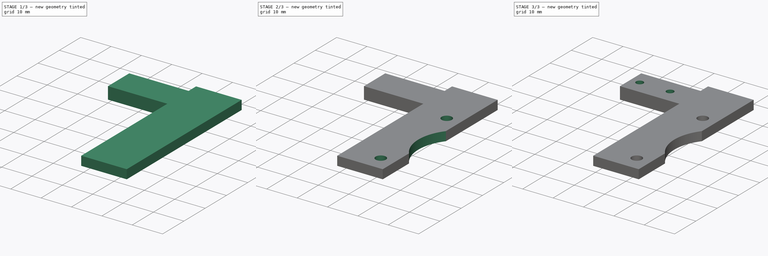
[diagram: build sequence overview — one tinted view per stage of 3, left to right]
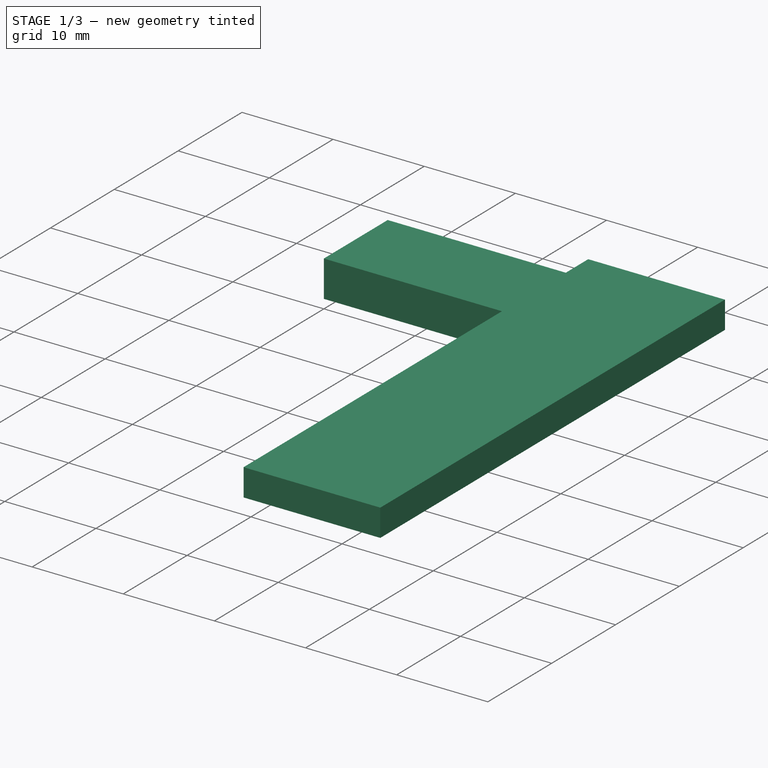
[diagram: stage 1 of 3 — iso view after this stage's code; geometry added in this stage tinted green]
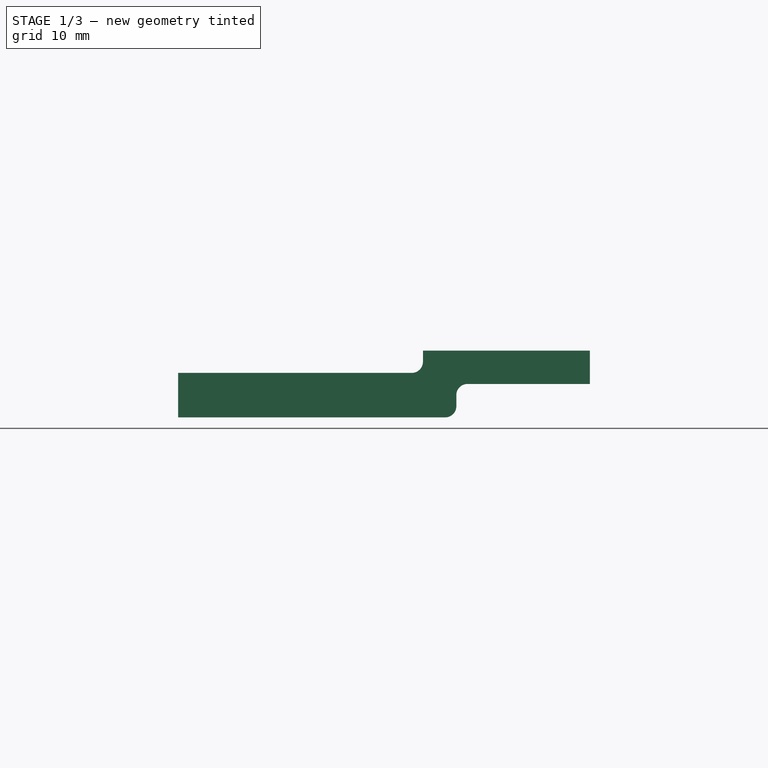
[diagram: stage 1 of 3 — front view after this stage's code; geometry added in this stage tinted green]
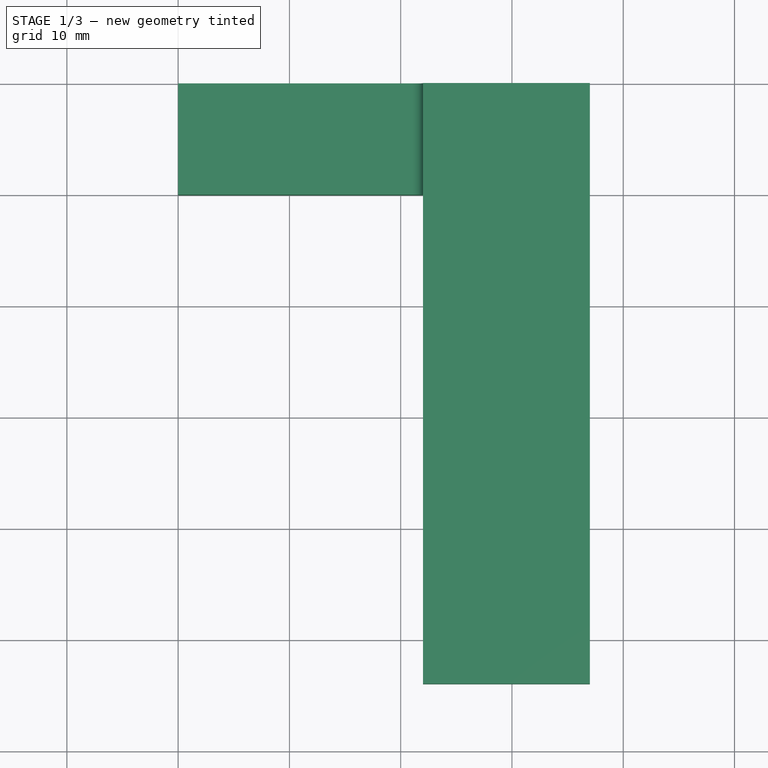
[diagram: stage 1 of 3 — top view after this stage's code; geometry added in this stage tinted green]
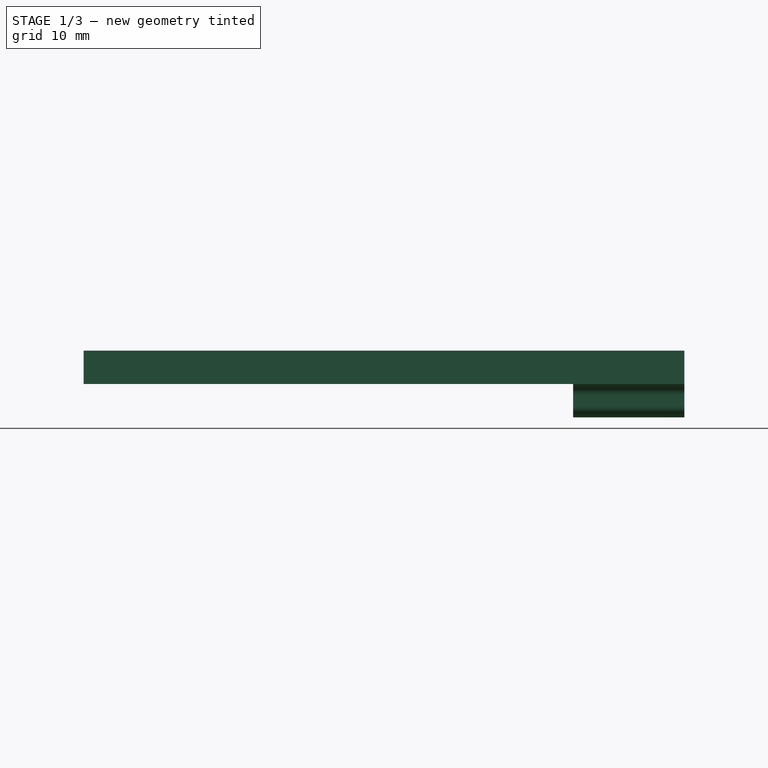
[diagram: stage 1 of 3 — right view after this stage's code; geometry added in this stage tinted green]
FCSTD DOCUMENT  (FreeCAD 0.19R24276 (Git))
Label: Art1OptoFix
License: All rights reserved
LicenseURL: http://en.wikipedia.org/wiki/All_rights_reserved
objects: Sketcher::SketchObject×5, PartDesign::Line×4, PartDesign::Pocket×3, PartDesign::Pad×2, PartDesign::CoordinateSystem×2, Spreadsheet::Sheet×1, PartDesign::Body×1
note: 22 computed .brp shape members not serialized (recipe doc carries the construction recipe); baked Part::Feature solids carry a one-line shape summary decoded from their .brp

FEATURE [Sketcher::SketchObject] Sketch
  FullyConstrained = true
  MapMode = 5
  Placement = pos=(0,0,0) rot=(1,0,0;1.5708rad)
  Support = -> [XZ_Plane]
  sketch-geometry (11):
    g0: LineSegment StartX=0 StartY=0 StartZ=0 EndX=24 EndY=0 EndZ=0
    g1: LineSegment StartX=25 StartY=1 StartZ=0 EndX=25 EndY=2 EndZ=0
    g2: LineSegment StartX=26 StartY=3 StartZ=0 EndX=37 EndY=3 EndZ=0
    g3: LineSegment StartX=37 StartY=3 StartZ=0 EndX=37 EndY=6 EndZ=0
    g4: LineSegment StartX=37 StartY=6 StartZ=0 EndX=22 EndY=6 EndZ=0
    g5: LineSegment StartX=22 StartY=6 StartZ=0 EndX=22 EndY=5 EndZ=0
    g6: LineSegment StartX=21 StartY=4 StartZ=0 EndX=0 EndY=4 EndZ=0
    g7: LineSegment StartX=0 StartY=4 StartZ=0 EndX=0 EndY=0 EndZ=0
    g8: ArcOfCircle CenterX=24 CenterY=1 CenterZ=0 NormalX=0 NormalY=0 NormalZ=1 AngleXU=0 Radius=1 StartAngle=4.71239 EndAngle=6.28319
    g9: ArcOfCircle CenterX=26 CenterY=2 CenterZ=0 NormalX=0 NormalY=0 NormalZ=1 AngleXU=0 Radius=1 StartAngle=1.5708 EndAngle=3.14159
    g10: ArcOfCircle CenterX=21 CenterY=5 CenterZ=0 NormalX=0 NormalY=0 NormalZ=1 AngleXU=0 Radius=1 StartAngle=4.71239 EndAngle=6.28319
  constraints (29):
    c: Coincident(g-1,g0)
    c: Horizontal(g2)
    c: Coincident(g2,g3)
    c: Coincident(g3,g4)
    c: Horizontal(g4)
    c: Coincident(g4,g5)
    c: Vertical(g5)
    c: PointOnObject(g6,g-2)
    c: Horizontal(g6)
    c: Coincident(g6,g7)
    c: Coincident(g7,g0)
    c: Vertical(g1)
    c: Vertical(g3)
    c: DistanceX(g4,g4) = 15
    c: Tangent(g1,g8) = -1.5708
    c: Tangent(g0,g8) = -1.5708
    c: Tangent(g1,g9) = 1.5708
    c: Tangent(g2,g9) = 1.5708
    c: Tangent(g6,g10) = 1.5708
    c: Tangent(g5,g10) = 1.5708
    c: Equal(g8,g9)
    c: Equal(g9,g10)
    c: Radius(g9) = 1
    c: Horizontal(g0)
    c: DistanceX(g0,g0) = 24
    c: DistanceX(g2,g2) = 11
    c: DistanceY(g5,g5) = 1
    c: DistanceY(g3,g3) = 3
    c: DistanceY(g7,g7) = 4
FEATURE [PartDesign::Pad] Pad
  Direction = (1,1,1)
  Length = 10
  Length2 = 100
  Placement = pos=(0,0,0) rot=(1,0,0;1.5708rad)
  Profile = -> Sketch
  Refine = true
  Type = 0
FEATURE [Sketcher::SketchObject] Sketch001
  ExternalGeometry = -> [Pad]
  FullyConstrained = true
  MapMode = 5
  Placement = pos=(0,-10,4.4e-15) rot=(1,0,0;1.5708rad)
  Support = -> [Pad]
  sketch-geometry (4):
    g0: LineSegment StartX=37 StartY=6 StartZ=0 EndX=22 EndY=6 EndZ=0
    g1: LineSegment StartX=22 StartY=6 StartZ=0 EndX=22 EndY=3 EndZ=0
    g2: LineSegment StartX=22 StartY=3 StartZ=0 EndX=37 EndY=3 EndZ=0
    g3: LineSegment StartX=37 StartY=3 StartZ=0 EndX=37 EndY=6 EndZ=0
  constraints (9):
    c: Coincident(g0,g1)
    c: Coincident(g1,g2)
    c: Coincident(g2,g3)
    c: Coincident(g3,g0)
    c: Horizontal(g2)
    c: Vertical(g1)
    c: Coincident(g0,g-4)
    c: Coincident(g2,g-4)
    c: Coincident(g0,g-3)
FEATURE [PartDesign::Pad] Pad001
  BaseFeature = -> Pad
  Direction = (1,1,1)
  Length = 44
  Length2 = 100
  Placement = pos=(0,0,0) rot=(1,0,0;1.5708rad)
  Profile = -> Sketch001
  Refine = true
  Type = 0
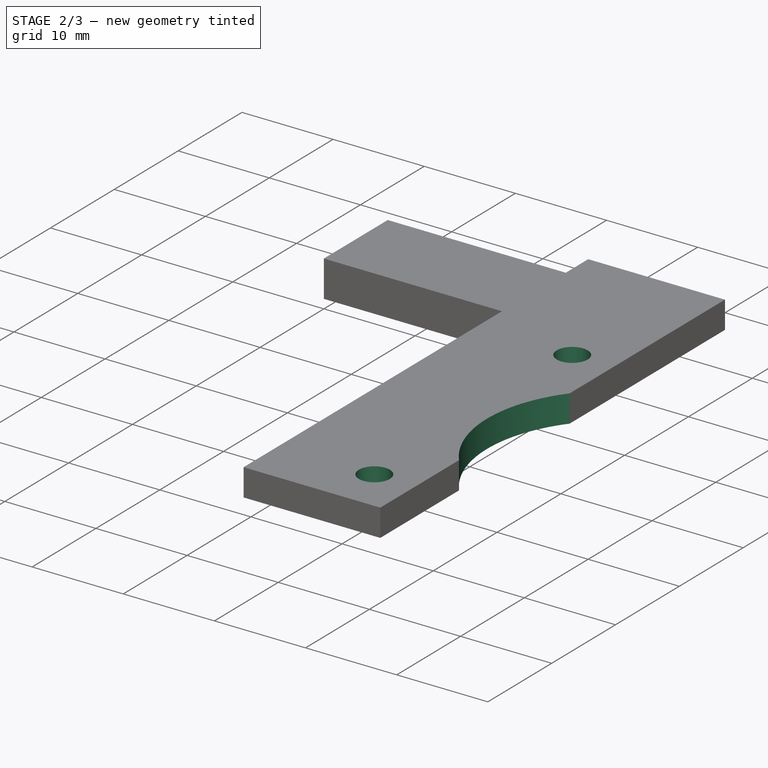
[diagram: stage 2 of 3 — iso view after this stage's code; geometry added in this stage tinted green]
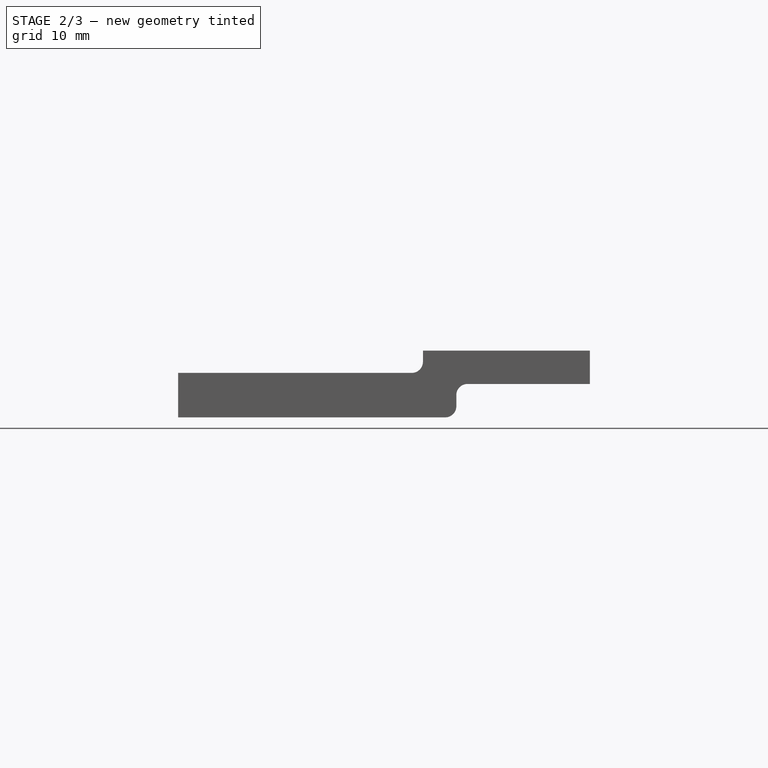
[diagram: stage 2 of 3 — front view after this stage's code; geometry added in this stage tinted green]
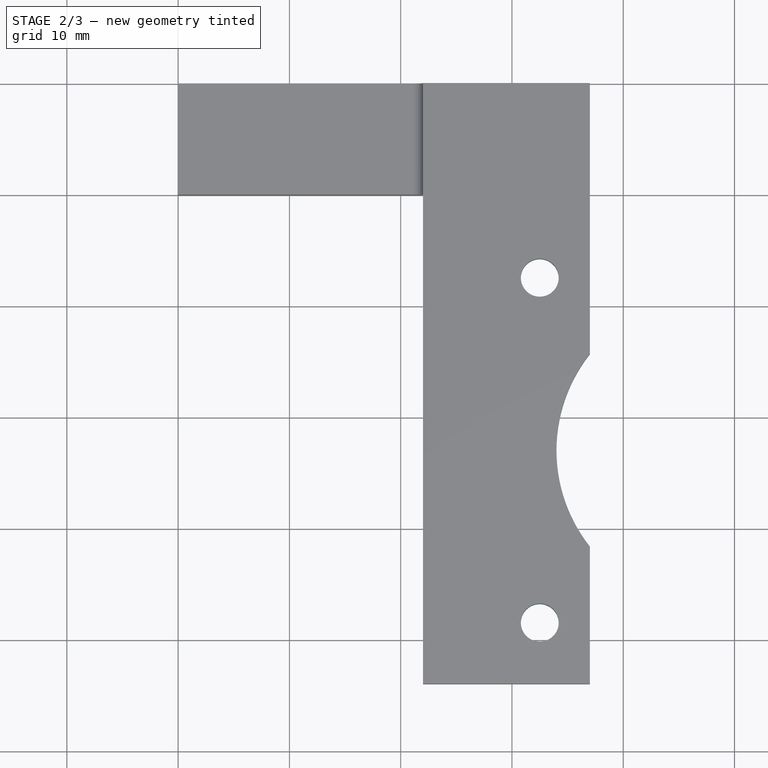
[diagram: stage 2 of 3 — top view after this stage's code; geometry added in this stage tinted green]
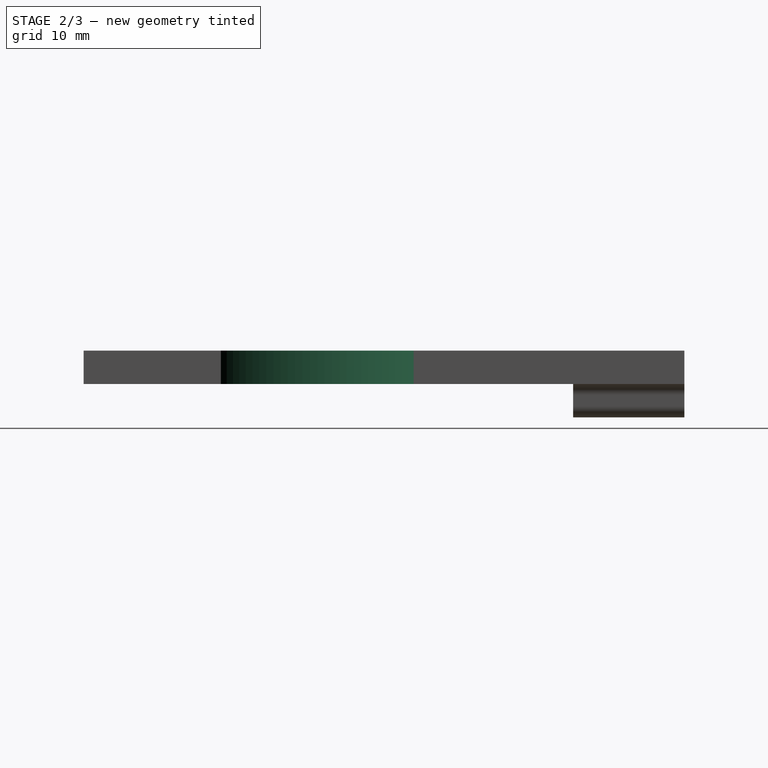
[diagram: stage 2 of 3 — right view after this stage's code; geometry added in this stage tinted green]
FEATURE [Spreadsheet::Sheet] Spreadsheet
  cells = A2=M3BoltBodyRadius; B2(M3BoltBodyRadius)=1.7; A3=M2BoltBodyRadius; B3(M2BoltBodyRadius)=1.2; A4=M2NutCircumradius; B4(M2NutCircumradius)=2.25
FEATURE [Sketcher::SketchObject] Sketch002
  ExternalGeometry = -> [Pad001]
  FullyConstrained = true
  MapMode = 5
  Placement = pos=(0,7e-15,6) rot=(0,0,1;3.14159rad)
  Support = -> [Pad001]
  expr: Constraints[8] = Spreadsheet.M3BoltBodyRadius
  sketch-geometry (3):
    g0: Circle CenterX=-48 CenterY=33 CenterZ=0 NormalX=0 NormalY=0 NormalZ=1 AngleXU=0 Radius=14
    g1: Circle CenterX=-32.5 CenterY=48.5 CenterZ=0 NormalX=0 NormalY=0 NormalZ=1 AngleXU=0 Radius=1.7
    g2: Circle CenterX=-32.5 CenterY=17.5 CenterZ=0 NormalX=0 NormalY=0 NormalZ=1 AngleXU=0 Radius=1.7
  constraints (9):
    c: DistanceY(g-3,g0) = 33
    c: Radius(g0) = 14
    c: DistanceX(g0,g-3) = 11
    c: Equal(g2,g1)
    c: DistanceY(g0,g1) = 15.5
    c: DistanceX(g0,g1) = 15.5
    c: DistanceX(g0,g2) = 15.5
    c: DistanceY(g2,g0) = 15.5
    c: Radius(g2) = 1.7
FEATURE [PartDesign::Pocket] Pocket
  BaseFeature = -> Pad001
  Length = 5
  Length2 = 100
  Placement = pos=(0,0,0) rot=(1,0,0;1.5708rad)
  Profile = -> Sketch002
  Refine = true
  Type = 1
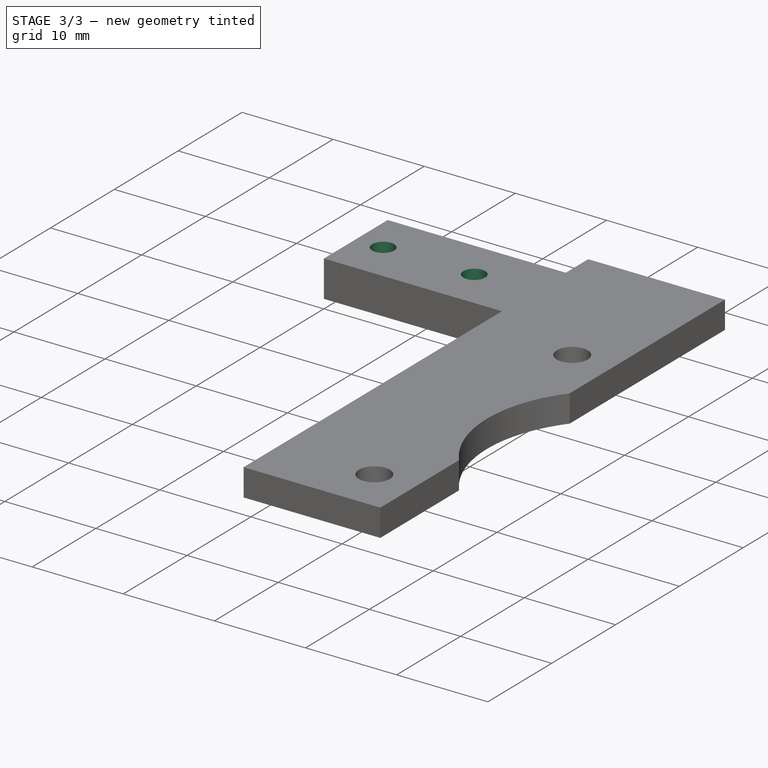
[diagram: stage 3 of 3 — iso view after this stage's code; geometry added in this stage tinted green]
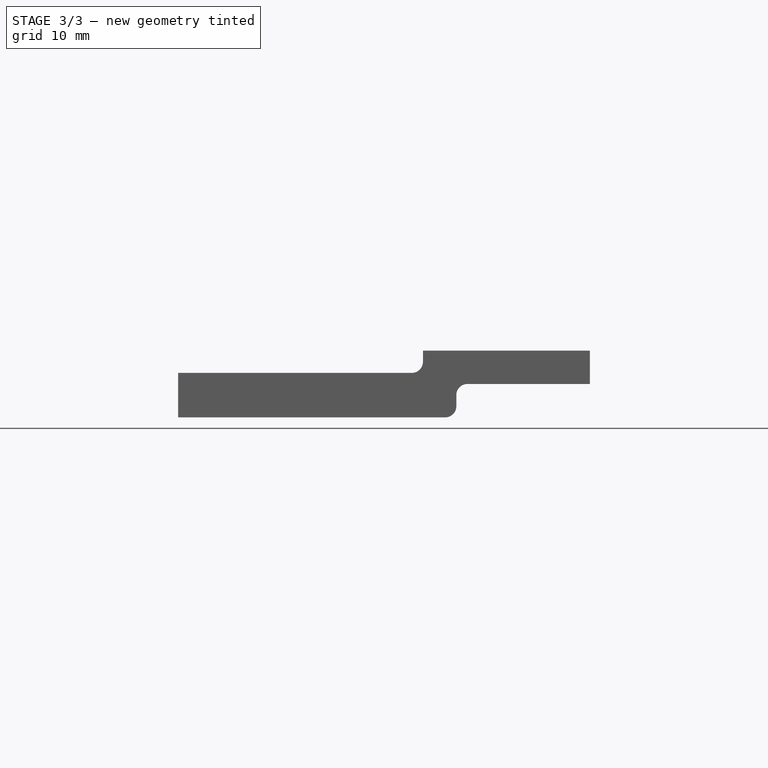
[diagram: stage 3 of 3 — front view after this stage's code; geometry added in this stage tinted green]
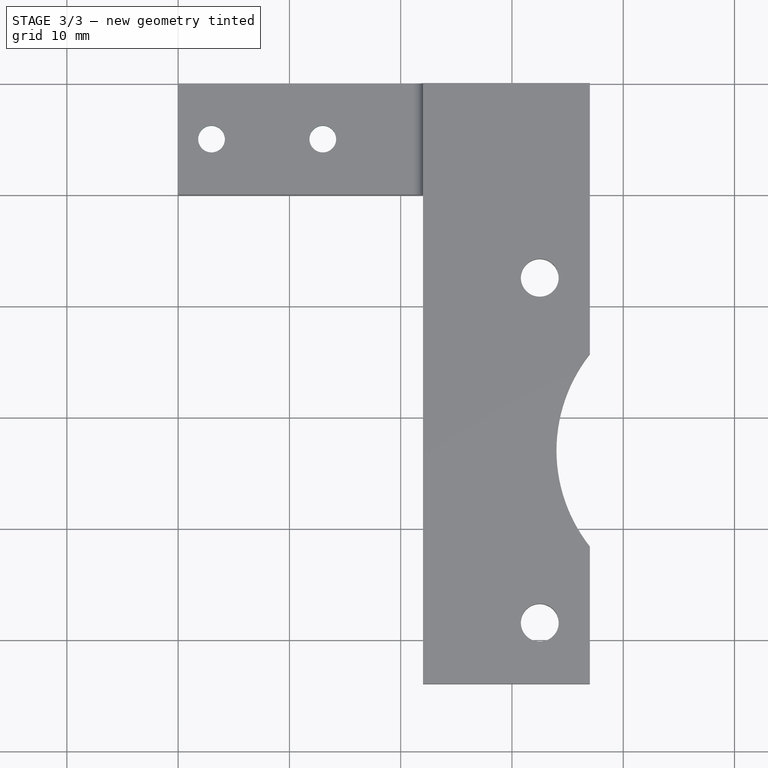
[diagram: stage 3 of 3 — top view after this stage's code; geometry added in this stage tinted green]
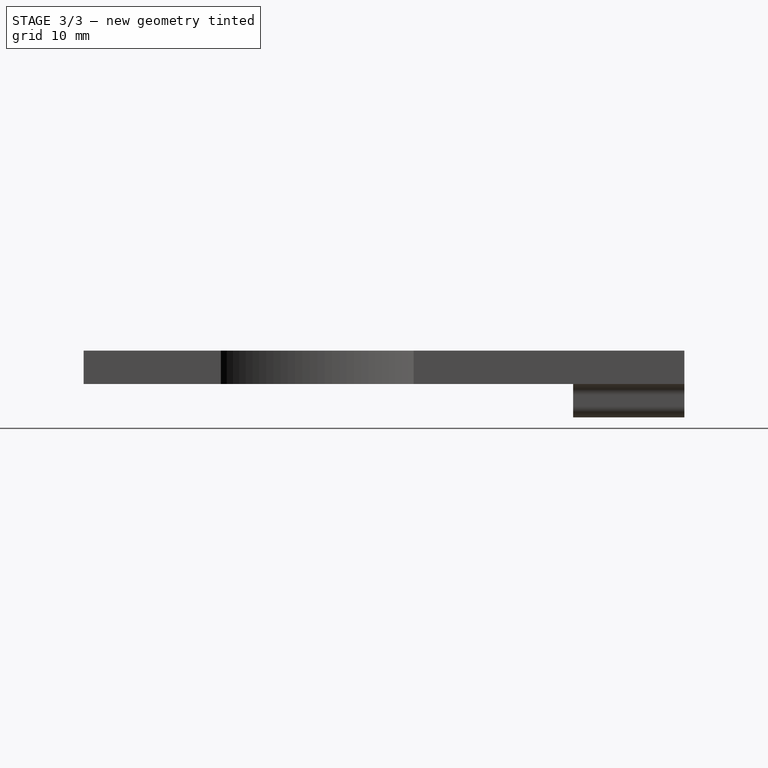
[diagram: stage 3 of 3 — right view after this stage's code; geometry added in this stage tinted green]
FEATURE [Sketcher::SketchObject] Sketch003
  FullyConstrained = true
  MapMode = 5
  Placement = pos=(0,2.6e-15,4) rot=(0,0,1;3.14159rad)
  Support = -> [Pocket]
  expr: Constraints[7] = Spreadsheet.M2BoltBodyRadius
  sketch-geometry (3):
    g0: Circle CenterX=-3 CenterY=5 CenterZ=0 NormalX=0 NormalY=0 NormalZ=1 AngleXU=0 Radius=1.2
    g1: Circle CenterX=-13 CenterY=5 CenterZ=0 NormalX=0 NormalY=0 NormalZ=1 AngleXU=0 Radius=1.2
    g2: LineSegment StartX=-13 StartY=5 StartZ=0 EndX=-3 EndY=5 EndZ=0
  constraints (8):
    c: Equal(g1,g0)
    c: Coincident(g2,g1)
    c: Coincident(g2,g0)
    c: Horizontal(g2)
    c: DistanceY(g-1,g0) = 5
    c: DistanceX(g0,g-1) = 3
    c: DistanceX(g2,g2) = 10
    c: Radius(g1) = 1.2
FEATURE [PartDesign::Pocket] Pocket001
  BaseFeature = -> Pocket
  Length = 5
  Length2 = 100
  Placement = pos=(0,0,0) rot=(1,0,0;1.5708rad)
  Profile = -> Sketch003
  Refine = true
  Type = 0
FEATURE [Sketcher::SketchObject] Sketch004
  ExternalGeometry = -> [Pocket001]
  FullyConstrained = true
  MapMode = 5
  Placement = pos=(0,0,0) rot=(1,0,0;3.14159rad)
  Support = -> [Pocket001]
  expr: Constraints[39] = Spreadsheet.M2NutCircumradius
  sketch-geometry (14):
    g0: LineSegment StartX=4.94856 StartY=3.875 StartZ=0 EndX=4.94856 EndY=6.125 EndZ=0
    g1: LineSegment StartX=4.94856 StartY=6.125 StartZ=0 EndX=3 EndY=7.25 EndZ=0
    g2: LineSegment StartX=3 StartY=7.25 StartZ=0 EndX=1.05144 EndY=6.125 EndZ=0
    g3: LineSegment StartX=1.05144 StartY=6.125 StartZ=0 EndX=1.05144 EndY=3.875 EndZ=0
    g4: LineSegment StartX=1.05144 StartY=3.875 StartZ=0 EndX=3 EndY=2.75 EndZ=0
    g5: LineSegment StartX=3 StartY=2.75 StartZ=0 EndX=4.94856 EndY=3.875 EndZ=0
    g6: Circle CenterX=3 CenterY=5 CenterZ=0 NormalX=0 NormalY=0 NormalZ=1 AngleXU=0 Radius=2.25
    g7: LineSegment StartX=13 StartY=2.75 StartZ=0 EndX=14.9486 EndY=3.875 EndZ=0
    g8: LineSegment StartX=14.9486 StartY=3.875 StartZ=0 EndX=14.9486 EndY=6.125 EndZ=0
    g9: LineSegment StartX=14.9486 StartY=6.125 StartZ=0 EndX=13 EndY=7.25 EndZ=0
    g10: LineSegment StartX=13 StartY=7.25 StartZ=0 EndX=11.0514 EndY=6.125 EndZ=0
    g11: LineSegment StartX=11.0514 StartY=6.125 StartZ=0 EndX=11.0514 EndY=3.875 EndZ=0
    g12: LineSegment StartX=11.0514 StartY=3.875 StartZ=0 EndX=13 EndY=2.75 EndZ=0
    g13: Circle CenterX=13 CenterY=5 CenterZ=0 NormalX=0 NormalY=0 NormalZ=1 AngleXU=0 Radius=2.25
  constraints (32):
    c: Coincident(g0,g1)
    c: Coincident(g1,g2)
    c: Coincident(g2,g3)
    c: Coincident(g3,g4)
    c: Coincident(g4,g5)
    c: Coincident(g5,g0)
    c: Equal(g0, g1-g5) x5
    c: PointOnObject(g0,g6)
    c: PointOnObject(g1,g6)
    c: PointOnObject(g2,g6)
    c: PointOnObject(g3,g6)
    c: PointOnObject(g4,g6)
    c: PointOnObject(g5,g6)
    c: Coincident(g6,g-4)
    c: Coincident(g7,g8)
    c: Coincident(g8,g9)
    c: Coincident(g9,g10)
    c: Coincident(g10,g11)
    c: Coincident(g11,g12)
    c: Coincident(g12,g7)
    c: Equal(g7, g8-g12) x5
    c: PointOnObject(g7,g13)
    c: PointOnObject(g8,g13)
    c: PointOnObject(g9,g13)
    c: PointOnObject(g10,g13)
    c: PointOnObject(g11,g13)
    c: PointOnObject(g12,g13)
    c: Coincident(g13,g-3)
    c: Vertical(g11)
    c: Vertical(g3)
    c: Equal(g6,g13)
    c: Radius(g6) = 2.25
FEATURE [PartDesign::Pocket] Pocket002
  BaseFeature = -> Pocket001
  Length = 2.5
  Length2 = 100
  Placement = pos=(0,0,0) rot=(1,0,0;1.5708rad)
  Profile = -> Sketch004
  Refine = true
  Type = 0
FEATURE [PartDesign::CoordinateSystem] LCS_Art1OptoFix
  AttacherType = Attacher::AttachEngine3D
  MapMode = 45
  Placement = pos=(32.5,-33,3) rot=(0,0,1;0rad)
  Support = -> [Pocket002]
FEATURE [PartDesign::CoordinateSystem] LCS_Art1OptoSensor
  AttacherType = Attacher::AttachEngine3D
  MapMode = 45
  Placement = pos=(8,-5,4) rot=(0,0,1;1.5708rad)
  Support = -> [Pocket002]
FEATURE [PartDesign::Line] HoleAxis_1
  AttacherType = Attacher::AttachEngineLine
  Length = 4.79083
  MapMode = 19
  Placement = pos=(32.5,-48.5,6) rot=(0,0,1;3.14159rad)
  ResizeMode = 1
  Support = -> [Pocket002]
FEATURE [PartDesign::Line] HoleAxis_2
  AttacherType = Attacher::AttachEngineLine
  Length = 4.79083
  MapMode = 19
  Placement = pos=(32.5,-17.5,6) rot=(0,0,1;3.14159rad)
  ResizeMode = 1
  Support = -> [Pocket002]
FEATURE [PartDesign::Line] HoleAxis_3
  AttacherType = Attacher::AttachEngineLine
  Length = 3.38176
  MapMode = 19
  Placement = pos=(3,-5,2.5) rot=(0,0,1;3.14159rad)
  ResizeMode = 1
  Support = -> [Pocket002]
FEATURE [PartDesign::Line] HoleAxis_4
  AttacherType = Attacher::AttachEngineLine
  Length = 3.38176
  MapMode = 19
  Placement = pos=(13,-5,2.5) rot=(0,0,1;3.14159rad)
  ResizeMode = 1
  Support = -> [Pocket002]
FEATURE [PartDesign::Body] Body  label="Art1OptoFix"
  Group = -> [Sketch,Pad,Sketch001,Pad001,Sketch002,Pocket,Sketch003,Pocket001,Sketch004,Pocket002,LCS_Art1OptoFix,LCS_Art1OptoSensor,HoleAxis_1,HoleAxis_2,HoleAxis_3,HoleAxis_4]
  Origin = -> Origin
  Tip = -> Pocket002
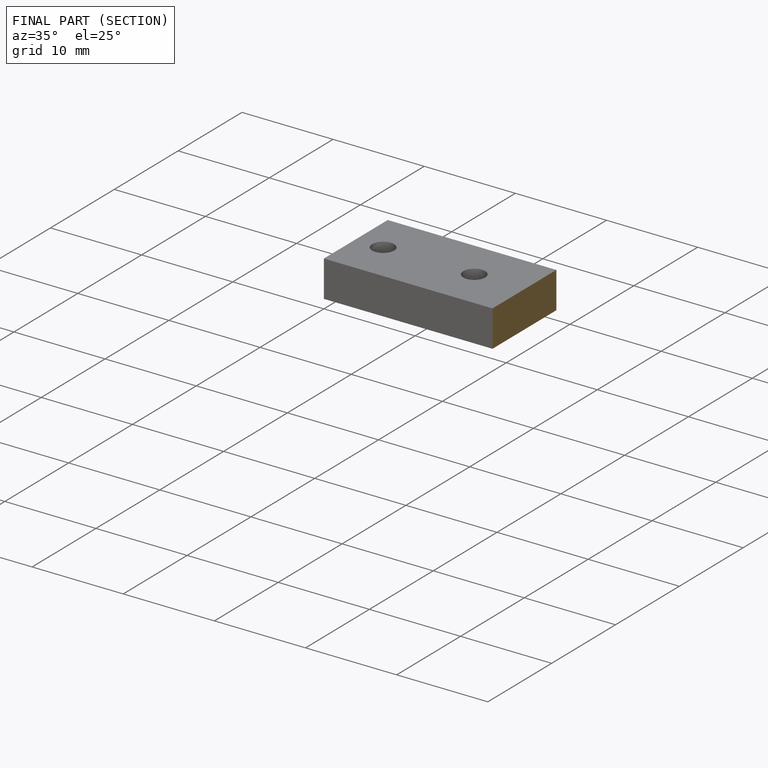
[diagram: finished part — half-section view (interior)]
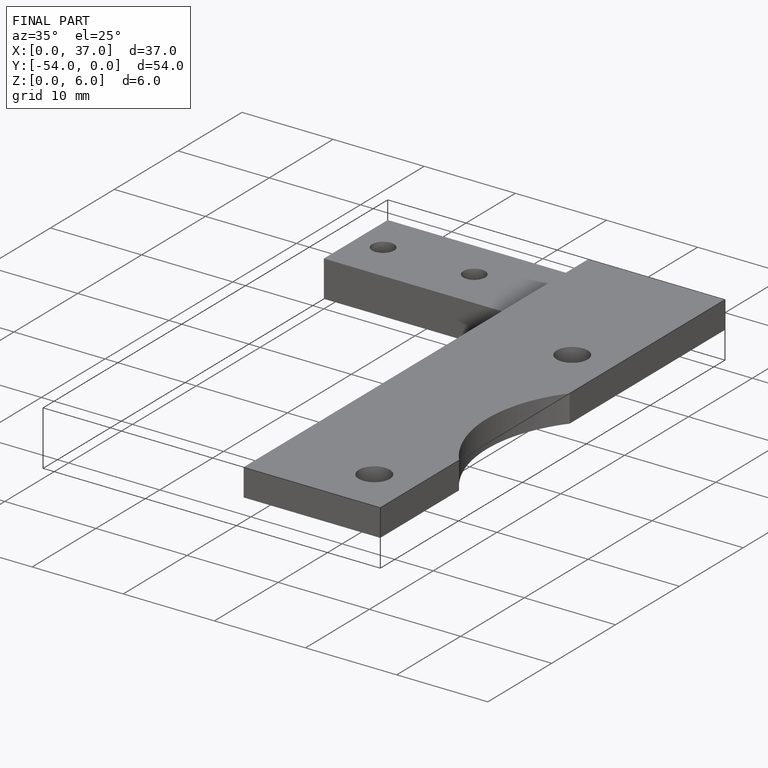
[diagram: finished part — iso view with bounding-box wireframe]
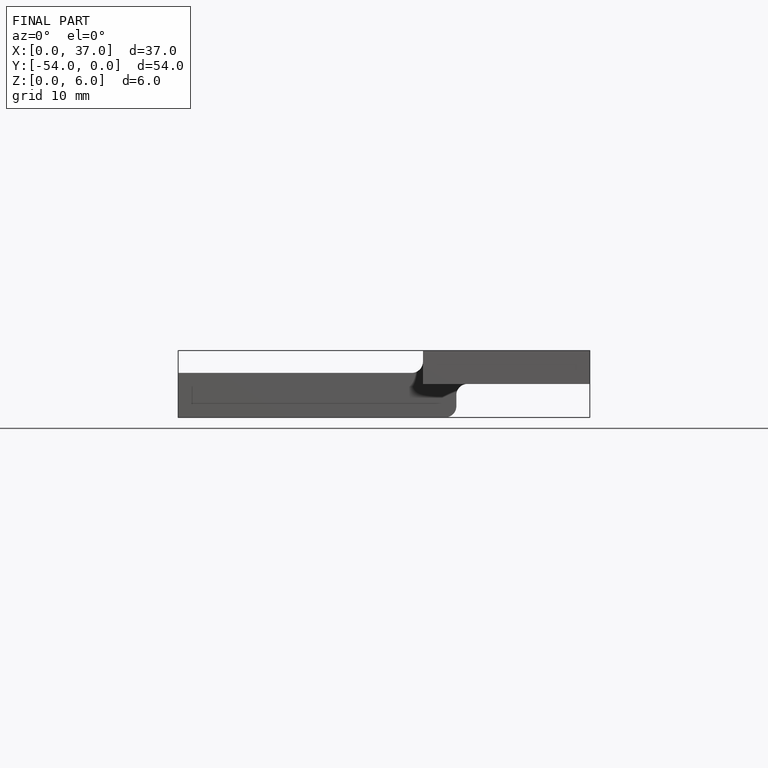
[diagram: finished part — front view with bounding-box wireframe]
